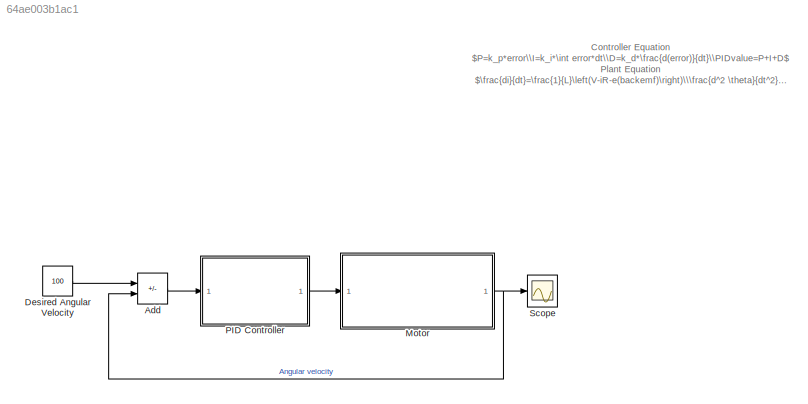
MODEL slx_64ae003b1ac1
KIND model
CONFIG AbsTol = auto
CONFIG EnableMultiTasking = off
CONFIG FixedStep = auto
CONFIG MaxStep = auto
CONFIG MinStep = auto
CONFIG RelTol = 1e-3
CONFIG SampleTimeConstraint = Unconstrained
CONFIG Solver = VariableStepAuto
CONFIG SolverName = VariableStepAuto
CONFIG StartTime = 0.0
CONFIG StopTime = 10
WORKSPACE source: mxarray member
WORKSPACE J = 3.2284e-06
WORKSPACE L = 2.75e-06
WORKSPACE R = 4
WORKSPACE b = 3.5077e-06
WORKSPACE kd = 0.125612262604
WORKSPACE ke = 0.0274
WORKSPACE ki = 372.024702765
WORKSPACE kp = 15.1715978788
WORKSPACE kt = 0.0274
BLOCK [Sum] Add
  IconShape = rectangular
  Inputs = +-
  Ports = [2, 1]
BLOCK [Constant] Desired Angular Velocity
  Value = 100
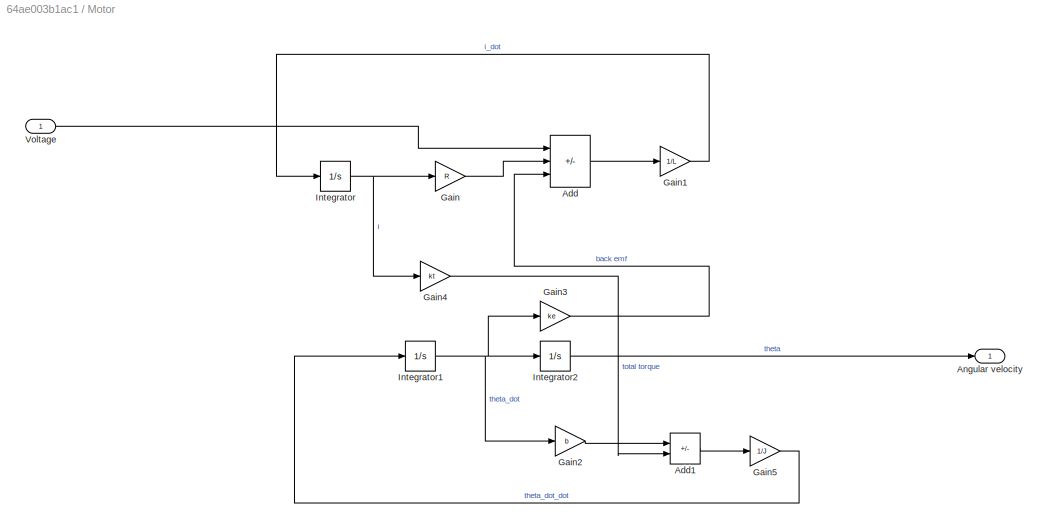
BLOCK [SubSystem] Motor
  Ports = [1, 1]
  RequestExecContextInheritance = off
BLOCK [Sum] Motor/Add
  IconShape = rectangular
  Inputs = +--
  Ports = [3, 1]
BLOCK [Sum] Motor/Add1
  IconShape = rectangular
  Inputs = -+
  Ports = [2, 1]
BLOCK [Outport] Motor/Angular velocity
BLOCK [Gain] Motor/Gain
  Gain = R
BLOCK [Gain] Motor/Gain1
  Gain = 1/L
BLOCK [Gain] Motor/Gain2
  Gain = b
BLOCK [Gain] Motor/Gain3
  Gain = ke
BLOCK [Gain] Motor/Gain4
  Gain = kt
BLOCK [Gain] Motor/Gain5
  Gain = 1/J
BLOCK [Integrator] Motor/Integrator
  Ports = [1, 1]
BLOCK [Integrator] Motor/Integrator1
  Ports = [1, 1]
BLOCK [Integrator] Motor/Integrator2
  Ports = [1, 1]
BLOCK [Inport] Motor/Voltage
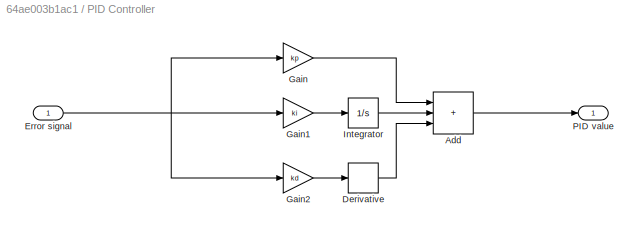
BLOCK [SubSystem] PID Controller
  Ports = [1, 1]
  RequestExecContextInheritance = off
BLOCK [Sum] PID Controller/Add
  IconShape = rectangular
  Inputs = +++
  Ports = [3, 1]
BLOCK [Derivative] PID Controller/Derivative
  CoefficientInTFapproximation = 1575.03337415742
BLOCK [Inport] PID Controller/Error signal
BLOCK [Gain] PID Controller/Gain
  Gain = kp
BLOCK [Gain] PID Controller/Gain1
  Gain = ki
BLOCK [Gain] PID Controller/Gain2
  Gain = kd
BLOCK [Integrator] PID Controller/Integrator
  Ports = [1, 1]
BLOCK [Outport] PID Controller/PID value
BLOCK [Scope] Scope
  Floating = off
  NumInputPorts = 1
  Ports = [1]
  ScopeSpecificationString = Simulink.scopes.TimeScopeBlockCfg('CurrentConfiguration', extmgr.ConfigurationSet(extmgr.Configuration('Core','General UI',true),extmgr.Configuration('Core','Source UI',true),extmgr.Configuration('Sources','WiredSimulink',true),extmgr.Configuration('Visuals','Time Domain',true,'SerializedDisplays',{struct('MinYLimReal','-14.01874','MaxYLimReal','126.16863','YLabelReal','','MinYLimMag','0.00000','M...<+1408ch>
ANNOTATION (root): Controller Equation $P=k_p*error\\I=k_i*\int error*dt\\D=k_d*\frac{d(error)}{dt}\\PIDvalue=P+I+D$ Plant Equation $\frac{di}{dt}=\frac{1}{L}\left(V-iR-e(backemf)\right)\\\frac{d^2 \theta}{dt^2}=\frac{1}{J}\left(T-b\frac{d\theta}{dt}\right)$
LINE Add:1 -> PID Controller:1
LINE Desired Angular Velocity:1 -> Add:1
LINE Motor/Add1:1 -> Motor/Gain5:1
LINE Motor/Add:1 -> Motor/Gain1:1
LINE Motor/Gain1:1 -> Motor/Integrator:1
LINE Motor/Gain2:1 -> Motor/Add1:1
LINE Motor/Gain3:1 -> Motor/Add:3
LINE Motor/Gain4:1 -> Motor/Add1:2
LINE Motor/Gain5:1 -> Motor/Integrator1:1
LINE Motor/Gain:1 -> Motor/Add:2
NET Motor/Integrator1:1 -> Motor/Gain2:1, Motor/Gain3:1, Motor/Integrator2:1
LINE Motor/Integrator2:1 -> Motor/Angular velocity:1
NET Motor/Integrator:1 -> Motor/Gain4:1, Motor/Gain:1
LINE Motor/Voltage:1 -> Motor/Add:1
NET Motor:1 -> Add:2, Scope:1
LINE PID Controller/Add:1 -> PID Controller/PID value:1
LINE PID Controller/Derivative:1 -> PID Controller/Add:3
NET PID Controller/Error signal:1 -> PID Controller/Gain1:1, PID Controller/Gain2:1, PID Controller/Gain:1
LINE PID Controller/Gain1:1 -> PID Controller/Integrator:1
LINE PID Controller/Gain2:1 -> PID Controller/Derivative:1
LINE PID Controller/Gain:1 -> PID Controller/Add:1
LINE PID Controller/Integrator:1 -> PID Controller/Add:2
LINE PID Controller:1 -> Motor:1
note: NET lines group one-source signal fan-out (src -> all destinations, sorted); 1:1 wires keep LINE
